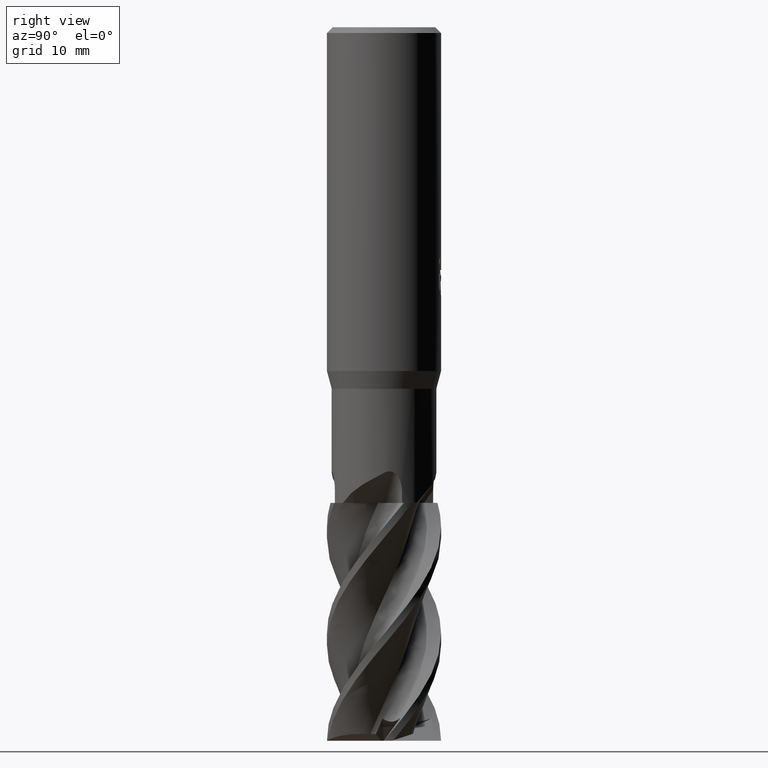
[diagram: clean part render]
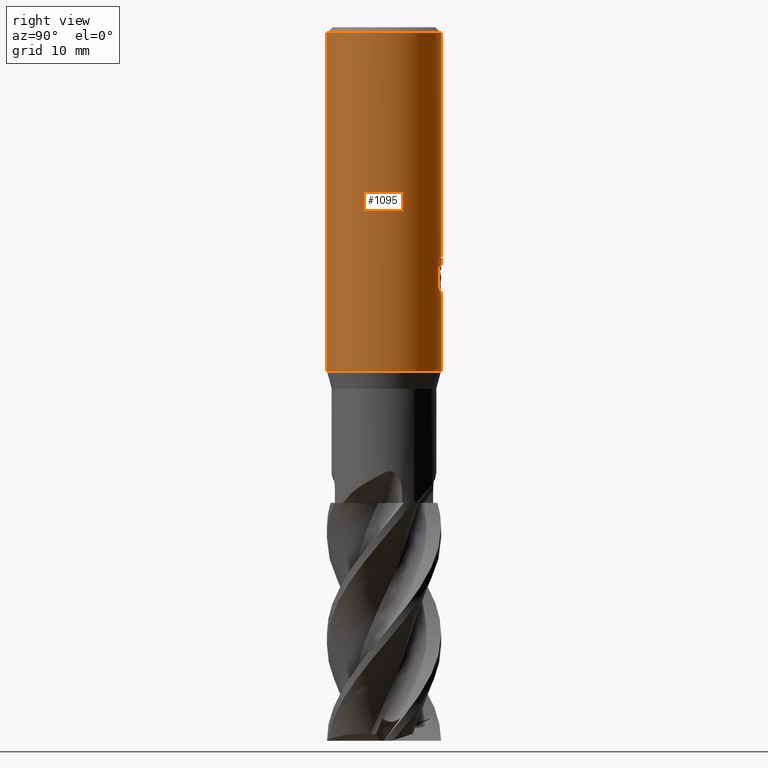
[diagram: same view with one face highlighted and labeled with its STEP entity id]
A machine part, right view. The second image highlights one B-rep face of the part: STEP entity #1095.
In plain terms, the highlighted cylindrical surface (partial cylindrical patch) has radius 6 mm, axis along (-0, -0, 1).
Its self-contained STEP definition (entity closure, byte-faithful):
#503=VERTEX_POINT('',#1458);
#513=EDGE_CURVE('',#1077,#741,#1469,.T.);
#589=EDGE_CURVE('',#847,#503,#1552,.T.);
#643=VERTEX_POINT('',#1612);
#711=VERTEX_POINT('',#1684);
#741=VERTEX_POINT('',#1716);
#759=EDGE_CURVE('',#1347,#1283,#1739,.T.);
#847=VERTEX_POINT('',#1835);
#855=EDGE_CURVE('',#1387,#1401,#1843,.T.);
#885=EDGE_CURVE('',#1283,#1387,#1876,.T.);
#887=VERTEX_POINT('',#1878);
#931=EDGE_CURVE('',#1131,#1129,#1924,.T.);
#937=VERTEX_POINT('',#1930);
#955=EDGE_CURVE('',#887,#1077,#1949,.T.);
#975=EDGE_CURVE('',#1129,#643,#1971,.T.);
#1041=VERTEX_POINT('',#2042);
#1077=VERTEX_POINT('',#2084);
#1095=ADVANCED_FACE('',(#2104,#2105),#2106,.T.);
#1129=VERTEX_POINT('',#2144);
#1131=VERTEX_POINT('',#2146);
#1221=EDGE_CURVE('',#937,#503,#2247,.T.);
#1223=EDGE_CURVE('',#847,#711,#2249,.T.);
#1255=EDGE_CURVE('',#643,#1347,#2281,.T.);
#1257=EDGE_CURVE('',#1041,#1131,#2283,.T.);
#1267=EDGE_CURVE('',#711,#937,#2293,.T.);
#1283=VERTEX_POINT('',#2311);
#1347=VERTEX_POINT('',#2381);
#1371=EDGE_CURVE('',#1401,#887,#2410,.T.);
#1387=VERTEX_POINT('',#2426);
#1401=VERTEX_POINT('',#2440);
#1435=EDGE_CURVE('',#741,#1041,#2478,.T.);
#1458=CARTESIAN_POINT('',(7.34763812293426E-016,-6.0,-0.600000000000001));
#1469=B_SPLINE_CURVE_WITH_KNOTS('',3,(#2782,#2783,#2784,#2785,#2786,#2787,#2788,#2789,#2790,#2791),.UNSPECIFIED.,.F.,.F.,(4,2,2,2,4),(10.7411366580096,11.1537143579779,11.5662920579463,11.9794511602567,12.3926102625672),.UNSPECIFIED.);
#1552=CIRCLE('',#3728,6.0);
#1612=CARTESIAN_POINT('',(0.0244948463970657,5.99995,-26.1370834817554));
#1684=CARTESIAN_POINT('',(0.0,6.0,-36.134));
#1716=CARTESIAN_POINT('',(1.78293189712495,5.72897493887121,-27.18762882336));
#1739=ELLIPSE('',#4974,6.68957059225716,6.0);
#1835=CARTESIAN_POINT('',(0.0,6.0,-0.600000000000001));
#1843=B_SPLINE_CURVE_WITH_KNOTS('',3,(#6472,#6473,#6474,#6475,#6476,#6477,#6478,#6479,#6480,#6481,#6482,#6483,#6484,#6485,#6486,#6487),.UNSPECIFIED.,.F.,.F.,(4,2,2,2,2,2,2,4),(7.84932439692473,8.26261089147826,8.67595374936495,9.08929660725164,9.50263946513833,9.91598232302503,10.3285600608663,10.7411377987076),.UNSPECIFIED.);
#1876=LINE('',#6605,#6606);
#1878=CARTESIAN_POINT('',(1.16473800375166,5.88586318075918,-25.8939428821325));
#1924=B_SPLINE_CURVE_WITH_KNOTS('',3,(#7004,#7005,#7006,#7007,#7008,#7009,#7010,#7011,#7012,#7013,#7014,#7015,#7016,#7017,#7018,#7019,#7020,#7021,#7022,#7023,#7024,#7025,#7026,#7027,#7028,#7029,#7030),.UNSPECIFIED.,.F.,.F.,(4,2,3,2,2,2,2,2,2,2,2,2,4),(-0.72360181149793,-0.361800905748964,0.0,0.361800905748966,0.723601811497933,1.08633909978848,1.44907638807903,1.81023671496142,2.17139704184381,2.53302252441848,2.89464800699315,3.25627348956782,3.61789897214249),.UNSPECIFIED.);
#1930=CARTESIAN_POINT('',(7.34763812293426E-016,-6.0,-36.134));
#1949=LINE('',#7322,#7323);
#1971=LINE('',#7586,#7587);
#2042=CARTESIAN_POINT('',(1.78293189712495,5.72897493887121,-24.8208255264546));
#2084=CARTESIAN_POINT('',(1.16473800375166,5.88586318075918,-27.8123829226563));
#2104=FACE_OUTER_BOUND('',#8197,.T.);
#2105=FACE_BOUND('',#8198,.T.);
#2106=CYLINDRICAL_SURFACE('',#8199,6.0);
#2144=CARTESIAN_POINT('',(0.0244948463970976,5.99995,-25.5035768693841));
#2146=CARTESIAN_POINT('',(1.06590008682601,5.90456238894165,-24.1341003691609));
#2247=LINE('',#8935,#8936);
#2249=LINE('',#8939,#8940);
#2281=B_SPLINE_CURVE_WITH_KNOTS('',3,(#9150,#9151,#9152,#9153,#9154,#9155,#9156,#9157,#9158,#9159,#9160,#9161,#9162,#9163,#9164,#9165,#9166,#9167,#9168,#9169,#9170,#9171,#9172,#9173),.UNSPECIFIED.,.F.,.F.,(4,2,2,2,2,2,2,2,2,2,2,4),(4.48073098737521,4.77923143833492,5.07773188929462,5.37623234025433,5.67473279121404,5.97323324217374,6.27097284431785,6.56871244646196,6.86645204860607,7.16419165075018,7.46398622242374,7.7637807940973),.UNSPECIFIED.);
#2283=B_SPLINE_CURVE_WITH_KNOTS('',3,(#9176,#9177,#9178,#9179,#9180,#9181,#9182,#9183,#9184,#9185),.UNSPECIFIED.,.F.,.F.,(4,2,2,2,4),(0.826318233423224,1.23947735013484,1.65263646684645,2.06521418068484,2.47779189452323),.UNSPECIFIED.);
#2293=CIRCLE('',#9212,6.0);
#2311=CARTESIAN_POINT('',(0.0244948463969634,5.99995,-26.4058594477574));
#2381=CARTESIAN_POINT('',(0.764163013666123,5.95113895725387,-26.0411907322697));
#2410=ELLIPSE('',#10328,18.2879674402186,6.0);
#2426=CARTESIAN_POINT('',(0.0244948463969637,5.99995,-28.1748686000526));
#2440=CARTESIAN_POINT('',(0.386800946335366,5.987519104597,-28.1338438705536));
#2478=LINE('',#10661,#10662);
#2782=CARTESIAN_POINT('',(0.79624070834412,5.9469320438673,-28.0091992755855));
#2783=CARTESIAN_POINT('',(0.929810034827349,5.92904831248428,-27.9536351770826));
#2784=CARTESIAN_POINT('',(1.05756685725398,5.90728554397455,-27.884634219235));
#2785=CARTESIAN_POINT('',(1.29348817299666,5.86015004092385,-27.725686780875));
#2786=CARTESIAN_POINT('',(1.40165333245614,5.8348207190434,-27.6357284183619));
#2787=CARTESIAN_POINT('',(1.59316990801525,5.78546472399645,-27.444298201895));
#2788=CARTESIAN_POINT('',(1.68323127476596,5.75965772694447,-27.3360708173914));
#2789=CARTESIAN_POINT('',(1.84231551619292,5.7107616125897,-27.1000904659257));
#2790=CARTESIAN_POINT('',(1.91135307429295,5.68772303408497,-26.9723369287594));
#2791=CARTESIAN_POINT('',(1.96695701804847,5.66842836147286,-26.8387611971254));
#3728=AXIS2_PLACEMENT_3D('',#10756,#10757,#10758);
#4974=AXIS2_PLACEMENT_3D('',#10989,#10990,#10991);
#6472=CARTESIAN_POINT('',(-1.83867296836211,5.71132924242811,-27.217684543987));
#6473=CARTESIAN_POINT('',(-1.75923837634909,5.73690196474795,-27.3355712259734));
#6474=CARTESIAN_POINT('',(-1.66932242375642,5.76395571007449,-27.4436904672389));
#6475=CARTESIAN_POINT('',(-1.47802881912804,5.81594844126011,-27.6350736491614));
#6476=CARTESIAN_POINT('',(-1.36990451777916,5.84276505606579,-27.7250816821051));
#6477=CARTESIAN_POINT('',(-1.13403387865073,5.89308994077547,-27.8841491879183));
#6478=CARTESIAN_POINT('',(-1.006286517385,5.91655495272609,-27.9532208256614));
#6479=CARTESIAN_POINT('',(-0.739083958679233,5.9558366303242,-28.064502636622));
#6480=CARTESIAN_POINT('',(-0.599394366095182,5.97165703351199,-28.106800595575));
#6481=CARTESIAN_POINT('',(-0.317651532993814,5.9932511073374,-28.162438815537));
#6482=CARTESIAN_POINT('',(-0.175594126727357,5.99901244319148,-28.1757627672426));
#6483=CARTESIAN_POINT('',(0.0997072703959471,6.00074760649625,-28.1757627672426));
#6484=CARTESIAN_POINT('',(0.241573602509126,5.99679337111965,-28.1624872042666));
#6485=CARTESIAN_POINT('',(0.523053916178745,5.97882121676958,-28.1069800804109));
#6486=CARTESIAN_POINT('',(0.662671735934632,5.96481573619486,-28.0647639578146));
#6487=CARTESIAN_POINT('',(0.796241073646247,5.94693199495662,-28.0091998543554));
#6605=CARTESIAN_POINT('',(0.0244948463969634,5.99995,-26.1549315682017));
#6606=VECTOR('',#11117,1.0);
#7004=CARTESIAN_POINT('',(0.886909749161197,5.93408721682137,-23.8856507490255));
#7005=CARTESIAN_POINT('',(0.971658559190707,5.92142064433961,-23.9705131668702));
#7006=CARTESIAN_POINT('',(1.04526597799041,5.90845929097393,-24.0780127269507));
#7007=CARTESIAN_POINT('',(1.14304048091452,5.89032517361882,-24.3139202927756));
#7008=CARTESIAN_POINT('',(1.16719158254652,5.88537711702764,-24.4423521414233));
#7009=CARTESIAN_POINT('',(1.16719158254652,5.88537711702764,-24.5629524433396));
#7010=CARTESIAN_POINT('',(1.16719158254652,5.88537711702764,-24.6835527452559));
#7011=CARTESIAN_POINT('',(1.14304048091452,5.89032517361882,-24.8119845939036));
#7012=CARTESIAN_POINT('',(1.04526597799041,5.90845929097393,-25.0478921597286));
#7013=CARTESIAN_POINT('',(0.971658559190708,5.92142064433961,-25.155391719809));
#7014=CARTESIAN_POINT('',(0.801941599420617,5.94678657185604,-25.3253361892397));
#7015=CARTESIAN_POINT('',(0.694326980995086,5.96087125230195,-25.3991478025612));
#7016=CARTESIAN_POINT('',(0.458138811076702,5.98365982255002,-25.4972096222497));
#7017=CARTESIAN_POINT('',(0.32953937808905,5.99216351695107,-25.5214439102268));
#7018=CARTESIAN_POINT('',(0.0883861889466779,6.00055671228507,-25.5214439102268));
#7019=CARTESIAN_POINT('',(-0.0399701615956431,6.0010284663397,-25.4973978221703));
#7020=CARTESIAN_POINT('',(-0.276026097474076,5.9948102439904,-25.3996516538263));
#7021=CARTESIAN_POINT('',(-0.383733500239096,5.98832392855074,-25.3259576027793));
#7022=CARTESIAN_POINT('',(-0.553907325011259,5.9749878911291,-25.1559293366432));
#7023=CARTESIAN_POINT('',(-0.627720262405306,5.96727714229006,-25.0481885759249));
#7024=CARTESIAN_POINT('',(-0.725665790869141,5.95615970246247,-24.811977505888));
#7025=CARTESIAN_POINT('',(-0.749791351227836,5.95296673345517,-24.6834942708645));
#7026=CARTESIAN_POINT('',(-0.749791351227836,5.95296673345517,-24.4424106158147));
#7027=CARTESIAN_POINT('',(-0.725665790869142,5.95615970246247,-24.3139273807913));
#7028=CARTESIAN_POINT('',(-0.627720262405309,5.96727714229006,-24.0777163107544));
#7029=CARTESIAN_POINT('',(-0.553907325011259,5.9749878911291,-23.969975550036));
#7030=CARTESIAN_POINT('',(-0.468765654132251,5.98166020110688,-23.8849067053129));
#7322=CARTESIAN_POINT('',(1.16473800375166,5.88586318075918,-26.8531629023944));
#7323=VECTOR('',#11159,1.0);
#7586=CARTESIAN_POINT('',(0.0244948463969634,5.99995,-26.1549315682017));
#7587=VECTOR('',#11183,1.0);
#8197=EDGE_LOOP('',(#11321,#11322,#11323,#11324));
#8198=EDGE_LOOP('',(#11325,#11326,#11327,#11328,#11329,#11330,#11331,#11332,#11333,#11334,#11335));
#8199=AXIS2_PLACEMENT_3D('',#11336,#11337,#11338);
#8935=CARTESIAN_POINT('',(7.34763812293426E-016,-6.0,-18.367));
#8936=VECTOR('',#11533,1.0);
#8939=CARTESIAN_POINT('',(-7.34763812293426E-016,6.0,-18.367));
#8940=VECTOR('',#11534,1.0);
#9150=CARTESIAN_POINT('',(-1.35048891683626,5.84603965822183,-24.2647881553991));
#9151=CARTESIAN_POINT('',(-1.37056791947492,5.84140122399383,-24.3668902379));
#9152=CARTESIAN_POINT('',(-1.3801338571413,5.83911213596488,-24.4696653721101));
#9153=CARTESIAN_POINT('',(-1.3801338571413,5.83911213596488,-24.6686656727499));
#9154=CARTESIAN_POINT('',(-1.37056791947492,5.84140122399383,-24.7714408069601));
#9155=CARTESIAN_POINT('',(-1.33040991419761,5.85067809244983,-24.9756449719619));
#9156=CARTESIAN_POINT('',(-1.29982790681991,5.85765752699187,-25.0770763600928));
#9157=CARTESIAN_POINT('',(-1.21910237433344,5.87498881723457,-25.2714231884883));
#9158=CARTESIAN_POINT('',(-1.16889486540318,5.88533454584315,-25.3645002458833));
#9159=CARTESIAN_POINT('',(-1.05298647093662,5.90717338619679,-25.5365453657203));
#9160=CARTESIAN_POINT('',(-0.987276929230589,5.91864007661348,-25.6155109491245));
#9161=CARTESIAN_POINT('',(-0.847471723835943,5.94026785846467,-25.7551067518695));
#9162=CARTESIAN_POINT('',(-0.76857856005869,5.95119907739388,-25.8205924311689));
#9163=CARTESIAN_POINT('',(-0.596687956072494,5.97088326336904,-25.9361202967626));
#9164=CARTESIAN_POINT('',(-0.503692932423597,5.97961185586931,-25.98617023021));
#9165=CARTESIAN_POINT('',(-0.309568789074213,5.9927983180408,-26.0666193312278));
#9166=CARTESIAN_POINT('',(-0.208274247240597,5.99725030577251,-26.0970840806747));
#9167=CARTESIAN_POINT('',(-0.00444954483130747,6.00086407059041,-26.137066242046));
#9168=CARTESIAN_POINT('',(0.0980824834947634,6.00001914171547,-26.1465747376966));
#9169=CARTESIAN_POINT('',(0.297152852246949,5.99347032126369,-26.1465747376966));
#9170=CARTESIAN_POINT('',(0.400197319943431,5.98751817149859,-26.1369368958837));
#9171=CARTESIAN_POINT('',(0.604724970802939,5.9703299287894,-26.096604298656));
#9172=CARTESIAN_POINT('',(0.706210942313636,5.95910027839327,-26.0659209385626));
#9173=CARTESIAN_POINT('',(0.803358978589675,5.94597463428153,-26.0254905127439));
#9176=CARTESIAN_POINT('',(1.96695702867685,5.66842835778479,-25.1696931711774));
#9177=CARTESIAN_POINT('',(1.91135308296988,5.68772303119087,-25.0361174349185));
#9178=CARTESIAN_POINT('',(1.84231552244884,5.71076161061433,-24.9083638933333));
#9179=CARTESIAN_POINT('',(1.68323127543376,5.75965772679176,-24.6723835337032));
#9180=CARTESIAN_POINT('',(1.59316990551509,5.78546472474429,-24.564156145454));
#9181=CARTESIAN_POINT('',(1.40165332330866,5.83482072129744,-24.372725922476));
#9182=CARTESIAN_POINT('',(1.29348816015849,5.86015004384041,-24.2827675569457));
#9183=CARTESIAN_POINT('',(1.05756683636552,5.90728554779634,-24.1238201132508));
#9184=CARTESIAN_POINT('',(0.929810009579058,5.92904831654607,-24.054819153085));
#9185=CARTESIAN_POINT('',(0.796240678545876,5.94693204785701,-23.9992550527192));
#9212=AXIS2_PLACEMENT_3D('',#11546,#11547,#11548);
#10328=AXIS2_PLACEMENT_3D('',#11685,#11686,#11687);
#10661=CARTESIAN_POINT('',(1.78293189712495,5.72897493887121,-26.0042271749073));
#10662=VECTOR('',#11731,1.0);
#10756=CARTESIAN_POINT('',(0.0,0.0,-0.600000000000001));
#10757=DIRECTION('',(0.0,0.0,-1.0));
#10758=DIRECTION('',(0.0,1.0,0.0));
#10989=CARTESIAN_POINT('',(0.0,0.0,-26.4179358146566));
#10990=DIRECTION('',(-0.442195774284071,0.0,0.896918556617774));
#10991=DIRECTION('',(0.896918556617774,-0.0,0.442195774284071));
#11117=DIRECTION('',(0.0,0.0,-1.0));
#11159=DIRECTION('',(0.0,0.0,-1.0));
#11183=DIRECTION('',(0.0,0.0,-1.0));
#11321=ORIENTED_EDGE('',*,*,#1223,.F.);
#11322=ORIENTED_EDGE('',*,*,#589,.T.);
#11323=ORIENTED_EDGE('',*,*,#1221,.F.);
#11324=ORIENTED_EDGE('',*,*,#1267,.F.);
#11325=ORIENTED_EDGE('',*,*,#759,.T.);
#11326=ORIENTED_EDGE('',*,*,#885,.T.);
#11327=ORIENTED_EDGE('',*,*,#855,.T.);
#11328=ORIENTED_EDGE('',*,*,#1371,.T.);
#11329=ORIENTED_EDGE('',*,*,#955,.T.);
#11330=ORIENTED_EDGE('',*,*,#513,.T.);
#11331=ORIENTED_EDGE('',*,*,#1435,.T.);
#11332=ORIENTED_EDGE('',*,*,#1257,.T.);
#11333=ORIENTED_EDGE('',*,*,#931,.T.);
#11334=ORIENTED_EDGE('',*,*,#975,.T.);
#11335=ORIENTED_EDGE('',*,*,#1255,.T.);
#11336=CARTESIAN_POINT('',(0.0,0.0,-18.367));
#11337=DIRECTION('',(-0.0,-0.0,1.0));
#11338=DIRECTION('',(0.0,1.0,0.0));
#11533=DIRECTION('',(-0.0,-0.0,1.0));
#11534=DIRECTION('',(0.0,0.0,-1.0));
#11546=CARTESIAN_POINT('',(0.0,0.0,-36.134));
#11547=DIRECTION('',(0.0,0.0,-1.0));
#11548=DIRECTION('',(0.0,1.0,0.0));
#11685=CARTESIAN_POINT('',(0.0,0.0,-29.2475532815646));
#11686=DIRECTION('',(0.944648353914092,0.0,-0.328084573619969));
#11687=DIRECTION('',(0.328084573619969,-0.0,0.944648353914092));
#11731=DIRECTION('',(-0.0,-0.0,1.0));